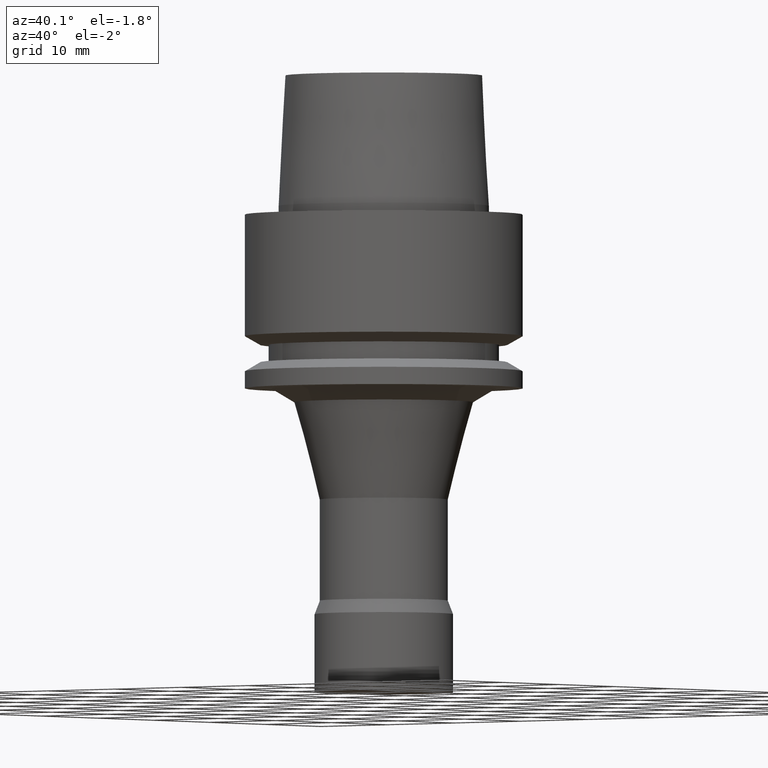
[diagram: clean part render]
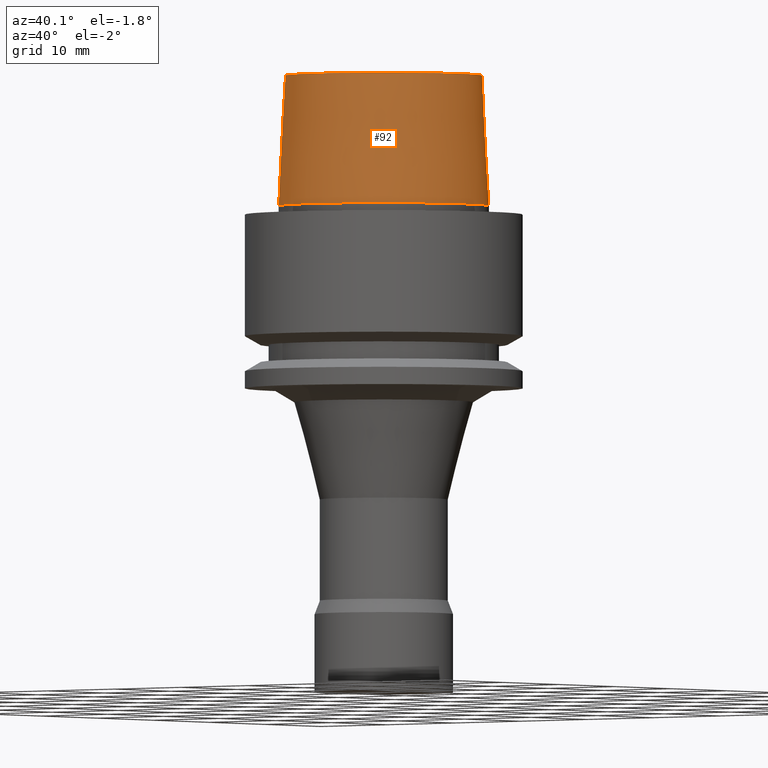
[diagram: same view with one face highlighted and labeled with its STEP entity id]
A machine part, auxiliary view. The second image highlights one B-rep face of the part: STEP entity #92.
In plain terms, the highlighted conical surface has half-angle 2.862 deg.
Its self-contained STEP definition (entity closure, byte-faithful):
#92=ADVANCED_FACE('',(#143,#144),#145,.T.);
#143=FACE_BOUND('',#195,.T.);
#144=FACE_BOUND('',#196,.T.);
#145=CONICAL_SURFACE('',#197,11.735,0.0499583957219411);
#195=EDGE_LOOP('',(#281));
#196=EDGE_LOOP('',(#282));
#197=AXIS2_PLACEMENT_3D('',#283,#284,#285);
#281=ORIENTED_EDGE('',*,*,#287,.F.);
#282=ORIENTED_EDGE('',*,*,#302,.T.);
#283=CARTESIAN_POINT('',(-5.20474889637625E-016,-1.04094977927525E-015,8.5));
#284=DIRECTION('',(6.12323399573677E-017,1.22464679914735E-016,-1.0));
#285=DIRECTION('',(-1.23259516440783E-032,1.0,1.22464679914735E-016));
#287=EDGE_CURVE('',#305,#305,#306,.T.);
#302=EDGE_CURVE('',#335,#335,#336,.T.);
#305=VERTEX_POINT('',#339);
#306=CIRCLE('',#340,12.11);
#335=VERTEX_POINT('',#369);
#336=CIRCLE('',#370,11.36);
#339=CARTESIAN_POINT('',(-6.12323399573678E-017,12.11,1.0));
#340=AXIS2_PLACEMENT_3D('',#374,#375,#376);
#369=CARTESIAN_POINT('',(-9.79717439317883E-016,11.36,16.0));
#370=AXIS2_PLACEMENT_3D('',#419,#420,#421);
#374=CARTESIAN_POINT('',(-6.12323399573677E-017,-1.22464679914735E-016,1.0));
#375=DIRECTION('',(6.12323399573677E-017,1.22464679914735E-016,-1.0));
#376=DIRECTION('',(-1.23259516440783E-032,1.0,1.22464679914735E-016));
#419=CARTESIAN_POINT('',(-9.79717439317883E-016,-1.95943487863576E-015,16.0));
#420=DIRECTION('',(6.12323399573677E-017,1.22464679914735E-016,-1.0));
#421=DIRECTION('',(-1.23259516440783E-032,1.0,1.22464679914735E-016));